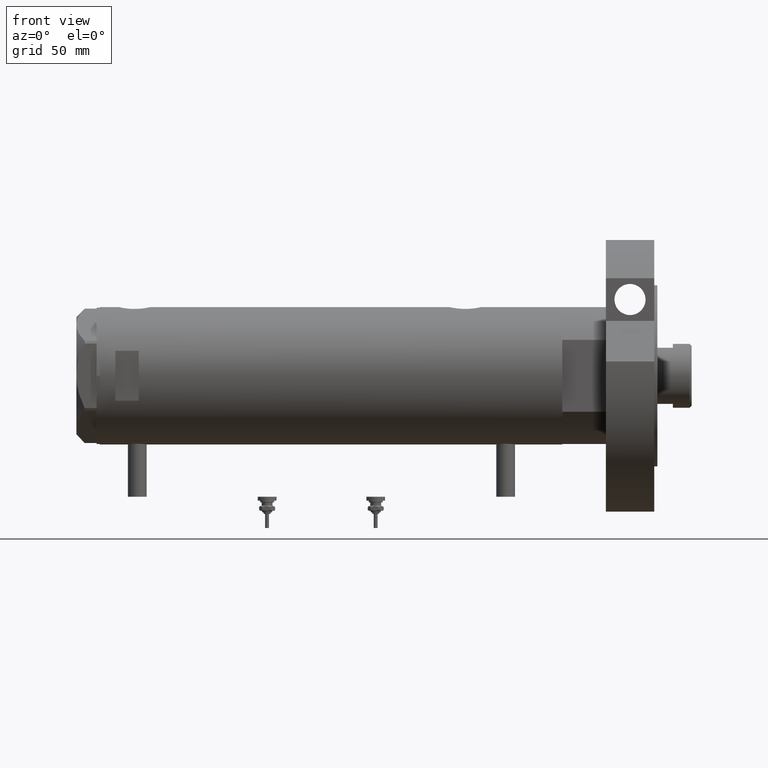
[diagram: clean part render]
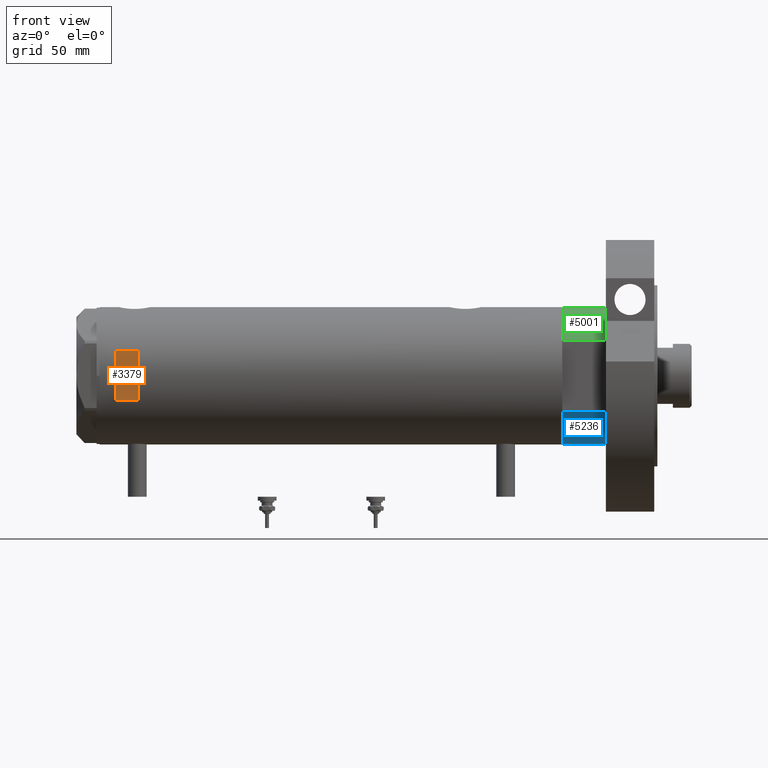
[diagram: same view with three faces highlighted in distinct colors, each labeled with its STEP entity id]
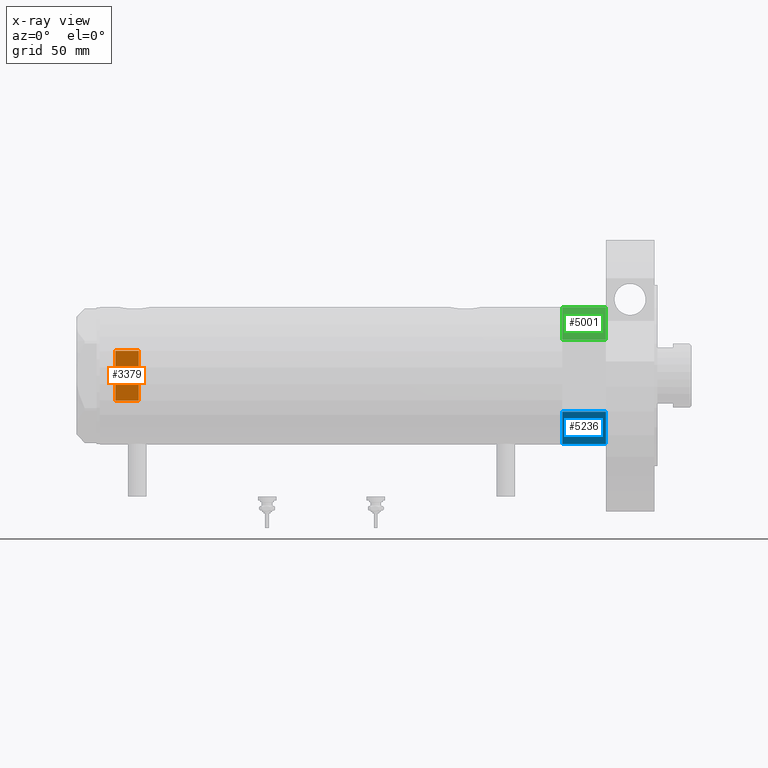
[diagram: x-ray of the same camera — body ghosted, the three highlighted faces saturated]
A machine part, front view with three faces highlighted in distinct colors.
The next image is the same camera in x-ray (body ghosted, the three faces saturated) — at least one of them is partly hidden behind the body in this view.
Their STEP definitions:

[orange] entity #3379 — the highlighted planar face has unit normal (-0, 1, 0).
#219 = DIRECTION ( 'NONE',  ( 0.000000000000000000, 1.000000000000000000, 0.000000000000000000 ) ) ;
#544 = VECTOR ( 'NONE', #999, 1000.000000000000000 ) ;
#624 = ORIENTED_EDGE ( 'NONE', *, *, #6320, .F. ) ;
#688 = VECTOR ( 'NONE', #4412, 1000.000000000000000 ) ;
#746 = VERTEX_POINT ( 'NONE', #4632 ) ;
#890 = LINE ( 'NONE', #3319, #544 ) ;
#930 = LINE ( 'NONE', #5081, #3106 ) ;
#999 = DIRECTION ( 'NONE',  ( -0.000000000000000000, -0.000000000000000000, -1.000000000000000000 ) ) ;
#1071 = ORIENTED_EDGE ( 'NONE', *, *, #6757, .T. ) ;
#1157 = EDGE_LOOP ( 'NONE', ( #1071, #1871, #2424, #624 ) ) ;
#1871 = ORIENTED_EDGE ( 'NONE', *, *, #7121, .T. ) ;
#1901 = FACE_OUTER_BOUND ( 'NONE', #1157, .T. ) ;
#1971 = CARTESIAN_POINT ( 'NONE',  ( -44.00000000000000000, -40.99999999999999289, 138.1999999999999886 ) ) ;
#1997 = CARTESIAN_POINT ( 'NONE',  ( -15.96871942267132027, -40.99999999999999289, 123.1999999999999744 ) ) ;
#2238 = VERTEX_POINT ( 'NONE', #1997 ) ;
#2424 = ORIENTED_EDGE ( 'NONE', *, *, #6740, .T. ) ;
#2729 = CARTESIAN_POINT ( 'NONE',  ( -44.00000000000000000, -40.99999999999999289, 123.1999999999999886 ) ) ;
#2864 = CARTESIAN_POINT ( 'NONE',  ( 15.96871942267132027, -40.99999999999999289, 138.1999999999999886 ) ) ;
#3106 = VECTOR ( 'NONE', #3935, 1000.000000000000000 ) ;
#3161 = LINE ( 'NONE', #7377, #3825 ) ;
#3319 = CARTESIAN_POINT ( 'NONE',  ( -15.96871942267132027, -40.99999999999999289, -148.1999999999999886 ) ) ;
#3379 = ADVANCED_FACE ( 'NONE', ( #1901 ), #5996, .F. ) ;
#3772 = VERTEX_POINT ( 'NONE', #4248 ) ;
#3825 = VECTOR ( 'NONE', #6677, 1000.000000000000000 ) ;
#3935 = DIRECTION ( 'NONE',  ( 1.000000000000000000, -0.000000000000000000, -0.000000000000000000 ) ) ;
#4248 = CARTESIAN_POINT ( 'NONE',  ( 15.96871942267132027, -40.99999999999999289, 123.1999999999999744 ) ) ;
#4294 = AXIS2_PLACEMENT_3D ( 'NONE', #1971, #219, #6634 ) ;
#4412 = DIRECTION ( 'NONE',  ( 1.000000000000000000, -0.000000000000000000, -0.000000000000000000 ) ) ;
#4632 = CARTESIAN_POINT ( 'NONE',  ( -15.96871942267132027, -40.99999999999999289, 138.1999999999999886 ) ) ;
#5081 = CARTESIAN_POINT ( 'NONE',  ( -44.00000000000000000, -40.99999999999999289, 138.1999999999999886 ) ) ;
#5996 = PLANE ( 'NONE',  #4294 ) ;
#6285 = VERTEX_POINT ( 'NONE', #2864 ) ;
#6320 = EDGE_CURVE ( 'NONE', #746, #6285, #930, .T. ) ;
#6634 = DIRECTION ( 'NONE',  ( 0.000000000000000000, -0.000000000000000000, 1.000000000000000000 ) ) ;
#6677 = DIRECTION ( 'NONE',  ( 0.000000000000000000, 0.000000000000000000, 1.000000000000000000 ) ) ;
#6740 = EDGE_CURVE ( 'NONE', #3772, #6285, #3161, .T. ) ;
#6757 = EDGE_CURVE ( 'NONE', #746, #2238, #890, .T. ) ;
#7121 = EDGE_CURVE ( 'NONE', #2238, #3772, #7325, .T. ) ;
#7325 = LINE ( 'NONE', #2729, #688 ) ;
#7377 = CARTESIAN_POINT ( 'NONE',  ( 15.96871942267132027, -40.99999999999999289, -148.1999999999999886 ) ) ;

[blue] entity #5236 — the highlighted cylindrical surface (partial cylindrical patch) has radius 44 mm, axis along (-1, -0, 0).
#592 = VERTEX_POINT ( 'NONE', #616 ) ;
#616 = CARTESIAN_POINT ( 'NONE',  ( 23.01629857296780557, -37.50000000000000000, 27.89999999999999858 ) ) ;
#931 = CYLINDRICAL_SURFACE ( 'NONE', #6154, 44.00000000000000000 ) ;
#991 = DIRECTION ( 'NONE',  ( -0.000000000000000000, -0.000000000000000000, 1.000000000000000000 ) ) ;
#1107 = ORIENTED_EDGE ( 'NONE', *, *, #3560, .T. ) ;
#1151 = CARTESIAN_POINT ( 'NONE',  ( 23.01629857296780557, -37.50000000000000000, 0.000000000000000000 ) ) ;
#1370 = ORIENTED_EDGE ( 'NONE', *, *, #6803, .F. ) ;
#1419 = EDGE_LOOP ( 'NONE', ( #5476, #1370, #1107, #2907 ) ) ;
#2121 = DIRECTION ( 'NONE',  ( 1.000000000000000000, 0.000000000000000000, 0.000000000000000000 ) ) ;
#2146 = CARTESIAN_POINT ( 'NONE',  ( 23.01629857296780557, 37.50000000000000000, 0.000000000000000000 ) ) ;
#2616 = CARTESIAN_POINT ( 'NONE',  ( 0.000000000000000000, 0.000000000000000000, 27.89999999999999858 ) ) ;
#2907 = ORIENTED_EDGE ( 'NONE', *, *, #4564, .T. ) ;
#3208 = CARTESIAN_POINT ( 'NONE',  ( 23.01629857296780557, -37.50000000000000000, 0.000000000000000000 ) ) ;
#3349 = DIRECTION ( 'NONE',  ( 0.000000000000000000, 0.000000000000000000, 1.000000000000000000 ) ) ;
#3484 = EDGE_CURVE ( 'NONE', #592, #6974, #6992, .T. ) ;
#3560 = EDGE_CURVE ( 'NONE', #5254, #3922, #7123, .T. ) ;
#3685 = AXIS2_PLACEMENT_3D ( 'NONE', #2616, #3349, #7365 ) ;
#3764 = DIRECTION ( 'NONE',  ( 0.000000000000000000, 0.000000000000000000, 1.000000000000000000 ) ) ;
#3922 = VERTEX_POINT ( 'NONE', #2146 ) ;
#4476 = CARTESIAN_POINT ( 'NONE',  ( 0.000000000000000000, 0.000000000000000000, 27.89999999999999858 ) ) ;
#4564 = EDGE_CURVE ( 'NONE', #3922, #6974, #6294, .T. ) ;
#4579 = LINE ( 'NONE', #1151, #6763 ) ;
#4790 = AXIS2_PLACEMENT_3D ( 'NONE', #5021, #3764, #2121 ) ;
#4895 = DIRECTION ( 'NONE',  ( -0.000000000000000000, -0.000000000000000000, -1.000000000000000000 ) ) ;
#5021 = CARTESIAN_POINT ( 'NONE',  ( 0.000000000000000000, 0.000000000000000000, 0.000000000000000000 ) ) ;
#5145 = DIRECTION ( 'NONE',  ( -0.000000000000000000, -0.000000000000000000, 1.000000000000000000 ) ) ;
#5236 = ADVANCED_FACE ( 'NONE', ( #6654 ), #931, .T. ) ;
#5254 = VERTEX_POINT ( 'NONE', #3208 ) ;
#5375 = CARTESIAN_POINT ( 'NONE',  ( 23.01629857296780557, 37.50000000000000000, 27.89999999999999858 ) ) ;
#5476 = ORIENTED_EDGE ( 'NONE', *, *, #3484, .F. ) ;
#5560 = CARTESIAN_POINT ( 'NONE',  ( 23.01629857296780557, 37.50000000000000000, 0.000000000000000000 ) ) ;
#6154 = AXIS2_PLACEMENT_3D ( 'NONE', #4476, #4895, #7305 ) ;
#6294 = LINE ( 'NONE', #5560, #7501 ) ;
#6654 = FACE_OUTER_BOUND ( 'NONE', #1419, .T. ) ;
#6763 = VECTOR ( 'NONE', #5145, 1000.000000000000000 ) ;
#6803 = EDGE_CURVE ( 'NONE', #5254, #592, #4579, .T. ) ;
#6974 = VERTEX_POINT ( 'NONE', #5375 ) ;
#6992 = CIRCLE ( 'NONE', #3685, 44.00000000000000000 ) ;
#7123 = CIRCLE ( 'NONE', #4790, 44.00000000000000000 ) ;
#7305 = DIRECTION ( 'NONE',  ( -1.000000000000000000, 0.000000000000000000, 0.000000000000000000 ) ) ;
#7365 = DIRECTION ( 'NONE',  ( 1.000000000000000000, 0.000000000000000000, 0.000000000000000000 ) ) ;
#7501 = VECTOR ( 'NONE', #991, 1000.000000000000000 ) ;

[green] entity #5001 — the highlighted cylindrical surface (partial cylindrical patch) has radius 44 mm, axis along (-1, -0, 0).
#375 = EDGE_LOOP ( 'NONE', ( #4151, #6082, #4769, #519 ) ) ;
#519 = ORIENTED_EDGE ( 'NONE', *, *, #542, .T. ) ;
#542 = EDGE_CURVE ( 'NONE', #1293, #5134, #2583, .T. ) ;
#716 = DIRECTION ( 'NONE',  ( 1.000000000000000000, 0.000000000000000000, 0.000000000000000000 ) ) ;
#863 = DIRECTION ( 'NONE',  ( -1.000000000000000000, 0.000000000000000000, 0.000000000000000000 ) ) ;
#1293 = VERTEX_POINT ( 'NONE', #6466 ) ;
#1375 = CARTESIAN_POINT ( 'NONE',  ( 0.000000000000000000, 0.000000000000000000, 0.000000000000000000 ) ) ;
#1436 = CYLINDRICAL_SURFACE ( 'NONE', #4317, 44.00000000000000000 ) ;
#1842 = EDGE_CURVE ( 'NONE', #6387, #5134, #2681, .T. ) ;
#2519 = VECTOR ( 'NONE', #3767, 1000.000000000000000 ) ;
#2583 = LINE ( 'NONE', #6459, #6468 ) ;
#2638 = DIRECTION ( 'NONE',  ( -0.000000000000000000, -0.000000000000000000, -1.000000000000000000 ) ) ;
#2644 = CARTESIAN_POINT ( 'NONE',  ( -44.00000000000000000, 0.000000000000000000, 27.89999999999999858 ) ) ;
#2681 = CIRCLE ( 'NONE', #3176, 44.00000000000000000 ) ;
#2743 = DIRECTION ( 'NONE',  ( 1.000000000000000000, 0.000000000000000000, 0.000000000000000000 ) ) ;
#3084 = CIRCLE ( 'NONE', #4060, 44.00000000000000000 ) ;
#3176 = AXIS2_PLACEMENT_3D ( 'NONE', #3932, #7420, #2743 ) ;
#3261 = VERTEX_POINT ( 'NONE', #5839 ) ;
#3767 = DIRECTION ( 'NONE',  ( -0.000000000000000000, -0.000000000000000000, -1.000000000000000000 ) ) ;
#3932 = CARTESIAN_POINT ( 'NONE',  ( 0.000000000000000000, 0.000000000000000000, 27.89999999999999858 ) ) ;
#4060 = AXIS2_PLACEMENT_3D ( 'NONE', #1375, #5412, #716 ) ;
#4151 = ORIENTED_EDGE ( 'NONE', *, *, #1842, .F. ) ;
#4317 = AXIS2_PLACEMENT_3D ( 'NONE', #6093, #2638, #863 ) ;
#4497 = EDGE_CURVE ( 'NONE', #3261, #1293, #3084, .T. ) ;
#4769 = ORIENTED_EDGE ( 'NONE', *, *, #4497, .T. ) ;
#4913 = DIRECTION ( 'NONE',  ( -0.000000000000000000, -0.000000000000000000, 1.000000000000000000 ) ) ;
#5001 = ADVANCED_FACE ( 'NONE', ( #5551 ), #1436, .T. ) ;
#5042 = CARTESIAN_POINT ( 'NONE',  ( -44.00000000000000000, 0.000000000000000000, 27.89999999999999858 ) ) ;
#5134 = VERTEX_POINT ( 'NONE', #7545 ) ;
#5412 = DIRECTION ( 'NONE',  ( 0.000000000000000000, 0.000000000000000000, 1.000000000000000000 ) ) ;
#5551 = FACE_OUTER_BOUND ( 'NONE', #375, .T. ) ;
#5839 = CARTESIAN_POINT ( 'NONE',  ( -44.00000000000000000, 0.000000000000000000, 0.000000000000000000 ) ) ;
#6082 = ORIENTED_EDGE ( 'NONE', *, *, #7084, .T. ) ;
#6093 = CARTESIAN_POINT ( 'NONE',  ( 0.000000000000000000, 0.000000000000000000, 27.89999999999999858 ) ) ;
#6174 = LINE ( 'NONE', #2644, #2519 ) ;
#6387 = VERTEX_POINT ( 'NONE', #5042 ) ;
#6459 = CARTESIAN_POINT ( 'NONE',  ( -23.01629857296780557, -37.50000000000000000, 0.000000000000000000 ) ) ;
#6466 = CARTESIAN_POINT ( 'NONE',  ( -23.01629857296780557, -37.50000000000000000, 0.000000000000000000 ) ) ;
#6468 = VECTOR ( 'NONE', #4913, 1000.000000000000000 ) ;
#7084 = EDGE_CURVE ( 'NONE', #6387, #3261, #6174, .T. ) ;
#7420 = DIRECTION ( 'NONE',  ( 0.000000000000000000, 0.000000000000000000, 1.000000000000000000 ) ) ;
#7545 = CARTESIAN_POINT ( 'NONE',  ( -23.01629857296780557, -37.50000000000000000, 27.89999999999999858 ) ) ;